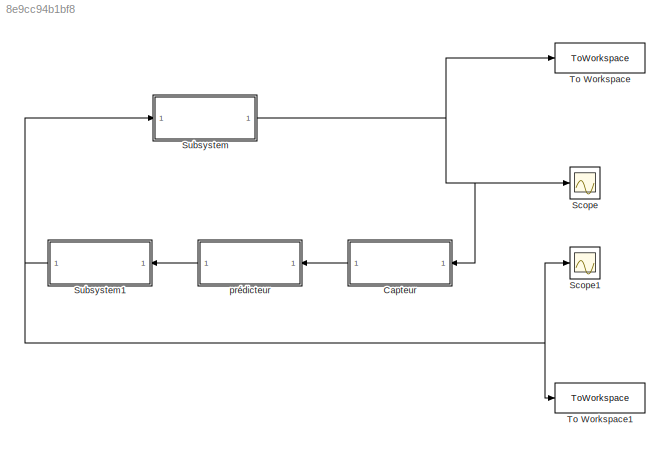
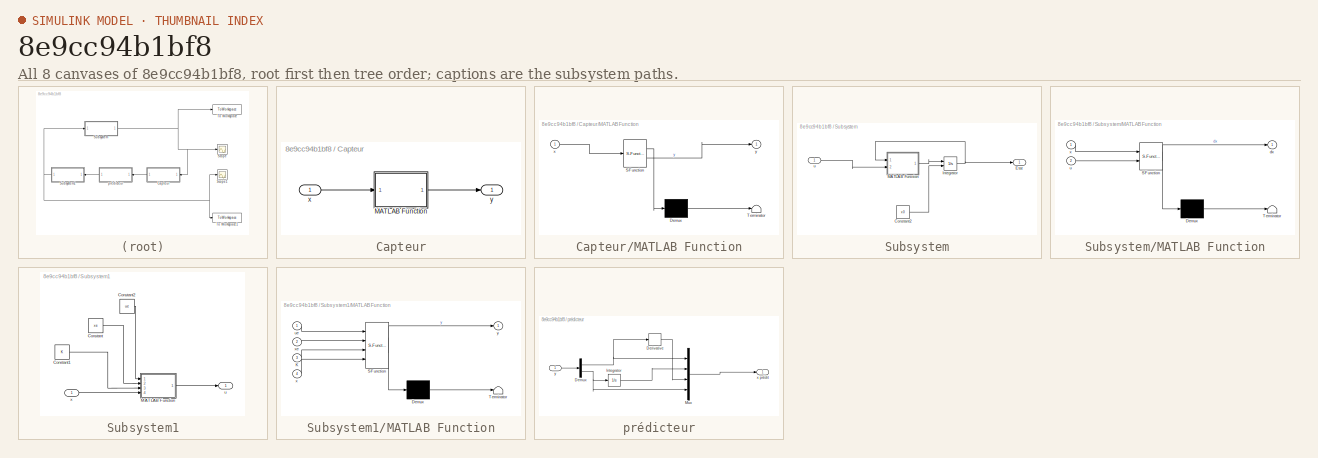
[diagram: thumbnail index - all 8 canvases of the model, root first then tree order]
MODEL slx_8e9cc94b1bf8
KIND model
CONFIG AbsTol = auto
CONFIG EnableMultiTasking = off
CONFIG FixedStep = auto
CONFIG MaxStep = auto
CONFIG MinStep = auto
CONFIG RelTol = 1e-3
CONFIG SampleTimeConstraint = Unconstrained
CONFIG SolverName = VariableStepAuto
CONFIG StartTime = 0.0
CONFIG StopTime = 10.0
BLOCK [SubSystem] Capteur
  Ports = [1, 1]
  RequestExecContextInheritance = off
BLOCK [SubSystem] Capteur/MATLAB Function
  ErrorFcn = Stateflow.Translate.translate
  PermitHierarchicalResolution = ExplicitOnly
  Ports = [1, 1]
  RequestExecContextInheritance = off
  SFBlockType = MATLAB Function
  TreatAsAtomicUnit = on
BLOCK [Demux] Capteur/MATLAB Function/ Demux 
  Outputs = 1
  Ports = [1, 1]
BLOCK [S-Function] Capteur/MATLAB Function/ SFunction 
  EnableBusSupport = on
  FunctionName = sf_sfun
  PortCounts = [1 2]
  Ports = [1, 2]
  SFcnIsStateOwnerBlock = off
  SFunctionDeploymentMode = off
  Tag = Stateflow S-Function 3
BLOCK [Terminator] Capteur/MATLAB Function/ Terminator 
BLOCK [Inport] Capteur/MATLAB Function/x
BLOCK [Outport] Capteur/MATLAB Function/y
BLOCK [Inport] Capteur/x
BLOCK [Outport] Capteur/y
BLOCK [Scope] Scope
  Floating = off
  NumInputPorts = 1
  Ports = [1]
  ScopeSpecificationString = Simulink.scopes.TimeScopeBlockCfg('CurrentConfiguration', extmgr.ConfigurationSet(extmgr.Configuration('Core','General UI',true),extmgr.Configuration('Core','Source UI',true),extmgr.Configuration('Sources','WiredSimulink',true,'DataLoggingVariableName','ScopeData1'),extmgr.Configuration('Visuals','Time Domain',true,'SerializedDisplays',{struct('MinYLimReal','-3.73209','MaxYLimReal','15.30183','YLa...<+1467ch>
BLOCK [Scope] Scope1
  Floating = off
  NumInputPorts = 1
  Ports = [1]
  ScopeSpecificationString = Simulink.scopes.TimeScopeBlockCfg('CurrentConfiguration', extmgr.ConfigurationSet(extmgr.Configuration('Core','General UI',true),extmgr.Configuration('Core','Source UI',true),extmgr.Configuration('Sources','WiredSimulink',true),extmgr.Configuration('Visuals','Time Domain',true,'SerializedDisplays',{struct('MinYLimReal','-0.9504','MaxYLimReal','8.55359','YLabelReal','','MinYLimMag','0.00000','MaxYL...<+1353ch>
BLOCK [SubSystem] Subsystem
  Ports = [1, 1]
  RequestExecContextInheritance = off
BLOCK [Constant] Subsystem/Constant2
  Value = x0
BLOCK [Outport] Subsystem/Etat
BLOCK [Integrator] Subsystem/Integrator
  InitialConditionSource = external
  Ports = [2, 1]
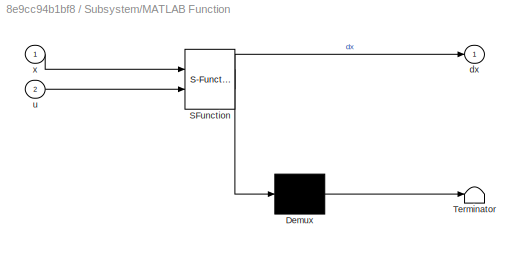
BLOCK [SubSystem] Subsystem/MATLAB Function
  ErrorFcn = Stateflow.Translate.translate
  PermitHierarchicalResolution = ExplicitOnly
  Ports = [2, 1]
  RequestExecContextInheritance = off
  SFBlockType = MATLAB Function
  TreatAsAtomicUnit = on
BLOCK [Demux] Subsystem/MATLAB Function/ Demux 
  Outputs = 1
  Ports = [1, 1]
BLOCK [S-Function] Subsystem/MATLAB Function/ SFunction 
  EnableBusSupport = on
  FunctionName = sf_sfun
  PortCounts = [2 2]
  Ports = [2, 2]
  SFcnIsStateOwnerBlock = off
  SFunctionDeploymentMode = off
  Tag = Stateflow S-Function 2
BLOCK [Terminator] Subsystem/MATLAB Function/ Terminator 
BLOCK [Outport] Subsystem/MATLAB Function/dx
BLOCK [Inport] Subsystem/MATLAB Function/u
  Port = 2
BLOCK [Inport] Subsystem/MATLAB Function/x
BLOCK [Inport] Subsystem/u
  NameLocation = left
BLOCK [SubSystem] Subsystem1
  Ports = [1, 1]
  RequestExecContextInheritance = off
BLOCK [Constant] Subsystem1/Constant
  Value = xe
BLOCK [Constant] Subsystem1/Constant1
  Value = K
BLOCK [Constant] Subsystem1/Constant2
  Value = ue
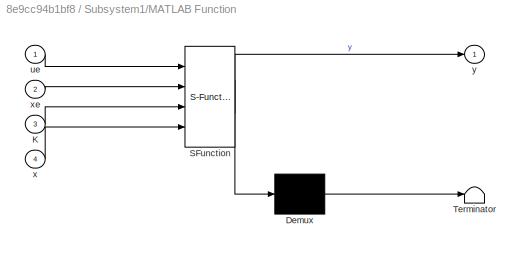
BLOCK [SubSystem] Subsystem1/MATLAB Function
  ErrorFcn = Stateflow.Translate.translate
  PermitHierarchicalResolution = ExplicitOnly
  Ports = [4, 1]
  RequestExecContextInheritance = off
  SFBlockType = MATLAB Function
  TreatAsAtomicUnit = on
BLOCK [Demux] Subsystem1/MATLAB Function/ Demux 
  Outputs = 1
  Ports = [1, 1]
BLOCK [S-Function] Subsystem1/MATLAB Function/ SFunction 
  EnableBusSupport = on
  FunctionName = sf_sfun
  PortCounts = [4 2]
  Ports = [4, 2]
  SFcnIsStateOwnerBlock = off
  SFunctionDeploymentMode = off
  Tag = Stateflow S-Function 1
BLOCK [Terminator] Subsystem1/MATLAB Function/ Terminator 
BLOCK [Inport] Subsystem1/MATLAB Function/K
  Port = 3
BLOCK [Inport] Subsystem1/MATLAB Function/ue
BLOCK [Inport] Subsystem1/MATLAB Function/x
  Port = 4
BLOCK [Inport] Subsystem1/MATLAB Function/xe
  Port = 2
BLOCK [Outport] Subsystem1/MATLAB Function/y
BLOCK [Outport] Subsystem1/u
BLOCK [Inport] Subsystem1/x
BLOCK [ToWorkspace] To Workspace
  FixptAsFi = on
  MaxDataPoints = inf
  Ports = [1]
  SampleTime = -1
  SaveFormat = Timeseries
  VariableName = X
BLOCK [ToWorkspace] To Workspace1
  FixptAsFi = on
  MaxDataPoints = inf
  Ports = [1]
  SampleTime = -1
  SaveFormat = Timeseries
  VariableName = U
BLOCK [SubSystem] prédicteur
  Ports = [1, 1]
  RequestExecContextInheritance = off
BLOCK [Demux] prédicteur/Demux
  Outputs = 2
  Ports = [1, 2]
BLOCK [Derivative] prédicteur/Derivative
BLOCK [Integrator] prédicteur/Integrator
  Ports = [1, 1]
BLOCK [Mux] prédicteur/Mux
  DisplayOption = bar
  Ports = [4, 1]
BLOCK [Outport] prédicteur/x prédit
BLOCK [Inport] prédicteur/y
LINE Capteur/MATLAB Function:1 -> Capteur/y:1
LINE Capteur/x:1 -> Capteur/MATLAB Function:1
LINE Capteur:1 -> prédicteur:1
LINE Subsystem/Constant2:1 -> Subsystem/Integrator:2
NET Subsystem/Integrator:1 -> Subsystem/Etat:1, Subsystem/MATLAB Function:1
LINE Subsystem/MATLAB Function:1 -> Subsystem/Integrator:1
LINE Subsystem/u:1 -> Subsystem/MATLAB Function:2
LINE Subsystem1/Constant1:1 -> Subsystem1/MATLAB Function:3
LINE Subsystem1/Constant2:1 -> Subsystem1/MATLAB Function:1
LINE Subsystem1/Constant:1 -> Subsystem1/MATLAB Function:2
LINE Subsystem1/MATLAB Function:1 -> Subsystem1/u:1
LINE Subsystem1/x:1 -> Subsystem1/MATLAB Function:4
NET Subsystem1:1 -> Scope1:1, Subsystem:1, To Workspace1:1
NET Subsystem:1 -> Capteur:1, Scope:1, To Workspace:1
NET prédicteur/Demux:1 -> prédicteur/Derivative:1, prédicteur/Mux:1
NET prédicteur/Demux:2 -> prédicteur/Integrator:1, prédicteur/Mux:4
LINE prédicteur/Derivative:1 -> prédicteur/Mux:3
LINE prédicteur/Integrator:1 -> prédicteur/Mux:2
LINE prédicteur/Mux:1 -> prédicteur/x prédit:1
LINE prédicteur/y:1 -> prédicteur/Demux:1
LINE prédicteur:1 -> Subsystem1:1
note: NET lines group one-source signal fan-out (src -> all destinations, sorted); 1:1 wires keep LINE
CHART Subsystem1/MATLAB Function states=1 transitions=1
  STATE_LABEL 'eML_blk_kernel()'
  STATE_LABEL 'SCRIPT:\nfunction y = fcn(ue,xe,K,x)\ny = ue+K(1)*(x(1)-xe(1)) + K(2)*(x(2)-xe(2)) + K(3)*(x(3)-xe(3)) + K(4)*(x(4)-xe(4));\nend'
CHART Subsystem/MATLAB Function states=1 transitions=1
  STATE_LABEL 'eML_blk_kernel()'
  STATE_LABEL 'SCRIPT:\nfunction dx   = fonction( x, u)\n%   Dynamic equations of motion of the segway on an axis.\n%   Inputs: - x = [theta psi dtheta dpsi]\n%               theta: average angle of the wheels      [rad]\n%               psi: body pitch angle                   [rad]\n%               dtheta: average velocity of the wheels  [rad/s]\n%               dpsi: body pitch velocity               [rad/s]\n%       ...<+1494ch>'
CHART Capteur/MATLAB Function states=1 transitions=1
  STATE_LABEL 'eML_blk_kernel()'
  STATE_LABEL 'SCRIPT:\nfunction y = fcn(x)\n\ny = [x(1) x(4)];\n'
CHART  states=0 transitions=0
CHART  states=0 transitions=0
CHART  states=0 transitions=0
